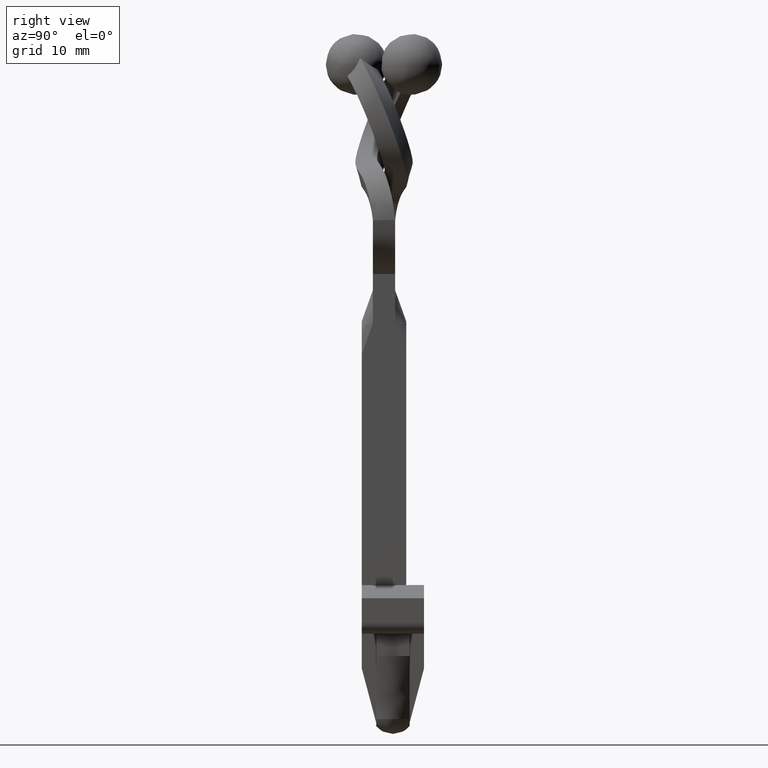
[diagram: clean part render]
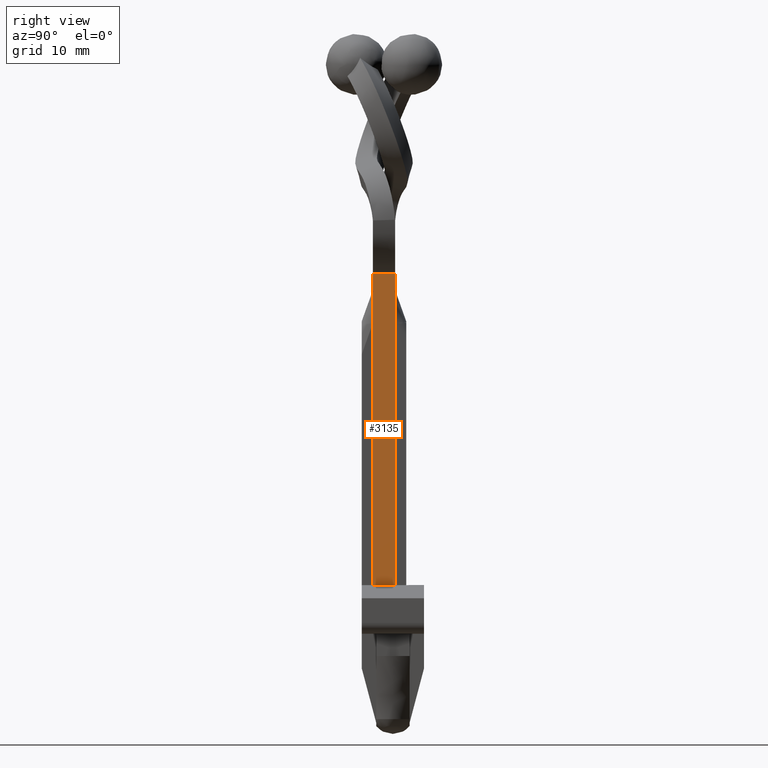
[diagram: same view with one face highlighted and labeled with its STEP entity id]
A machine part, right view. The second image highlights one B-rep face of the part: STEP entity #3135.
In plain terms, the highlighted face is a freeform B-spline surface patch.
Its self-contained STEP definition (entity closure, byte-faithful):
#2908=CARTESIAN_POINT('',(2.0,1.0,-4.851874954671960));
#2909=VERTEX_POINT('',#2908);
#2910=CARTESIAN_POINT('',(2.0,-1.0,-4.851873448849520));
#2911=VERTEX_POINT('',#2910);
#2912=CARTESIAN_POINT('',(2.0,1.0,-4.851874954671960));
#2913=CARTESIAN_POINT('',(2.0,-1.0,-4.851873448849520));
#2914=QUASI_UNIFORM_CURVE('',1,(#2912,#2913),.UNSPECIFIED.,.F.,.U.);
#2915=EDGE_CURVE('',#2909,#2911,#2914,.T.);
#3108=CARTESIAN_POINT('',(2.0,1.099899996123612,-34.273121068367352));
#3109=CARTESIAN_POINT('',(2.0,-1.099900049767792,-34.273121068367352));
#3110=CARTESIAN_POINT('',(2.0,1.099899996123612,-3.452195318059469));
#3111=CARTESIAN_POINT('',(2.0,-1.099900049767792,-3.452195318059469));
#3112=B_SPLINE_SURFACE_WITH_KNOTS('',1,1,((#3108,#3110),(#3109,#3111)),.UNSPECIFIED.,.F.,.F.,.U.,(2,2),(2,2),(0.0,2.199800045891404),(0.0,30.820925750307879),.UNSPECIFIED.);
#3113=CARTESIAN_POINT('',(2.0,1.0,-32.873443188109647));
#3114=VERTEX_POINT('',#3113);
#3115=CARTESIAN_POINT('',(2.0,1.0,-4.851874954671960));
#3116=CARTESIAN_POINT('',(2.0,1.0,-32.873443188109647));
#3117=QUASI_UNIFORM_CURVE('',1,(#3115,#3116),.UNSPECIFIED.,.F.,.U.);
#3118=EDGE_CURVE('',#2909,#3114,#3117,.T.);
#3119=ORIENTED_EDGE('',*,*,#3118,.F.);
#3120=ORIENTED_EDGE('',*,*,#2915,.T.);
#3121=CARTESIAN_POINT('',(2.0,-1.0,-32.873443188109647));
#3122=VERTEX_POINT('',#3121);
#3123=CARTESIAN_POINT('',(2.0,-1.0,-32.873443188109647));
#3124=CARTESIAN_POINT('',(2.0,-1.0,-4.851873448849520));
#3125=QUASI_UNIFORM_CURVE('',1,(#3123,#3124),.UNSPECIFIED.,.F.,.U.);
#3126=EDGE_CURVE('',#3122,#2911,#3125,.T.);
#3127=ORIENTED_EDGE('',*,*,#3126,.F.);
#3128=CARTESIAN_POINT('',(2.0,1.0,-32.873443188109647));
#3129=CARTESIAN_POINT('',(2.0,-1.0,-32.873443188109647));
#3130=QUASI_UNIFORM_CURVE('',1,(#3128,#3129),.UNSPECIFIED.,.F.,.U.);
#3131=EDGE_CURVE('',#3114,#3122,#3130,.T.);
#3132=ORIENTED_EDGE('',*,*,#3131,.F.);
#3133=EDGE_LOOP('',(#3119,#3120,#3127,#3132));
#3134=FACE_OUTER_BOUND('',#3133,.T.);
#3135=ADVANCED_FACE('',(#3134),#3112,.F.);